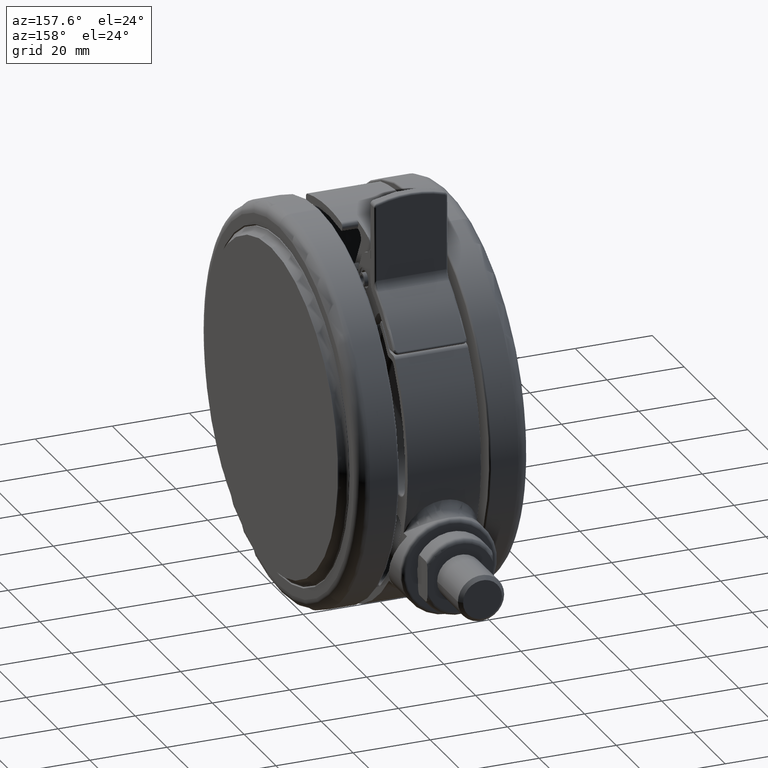
[diagram: clean part render]
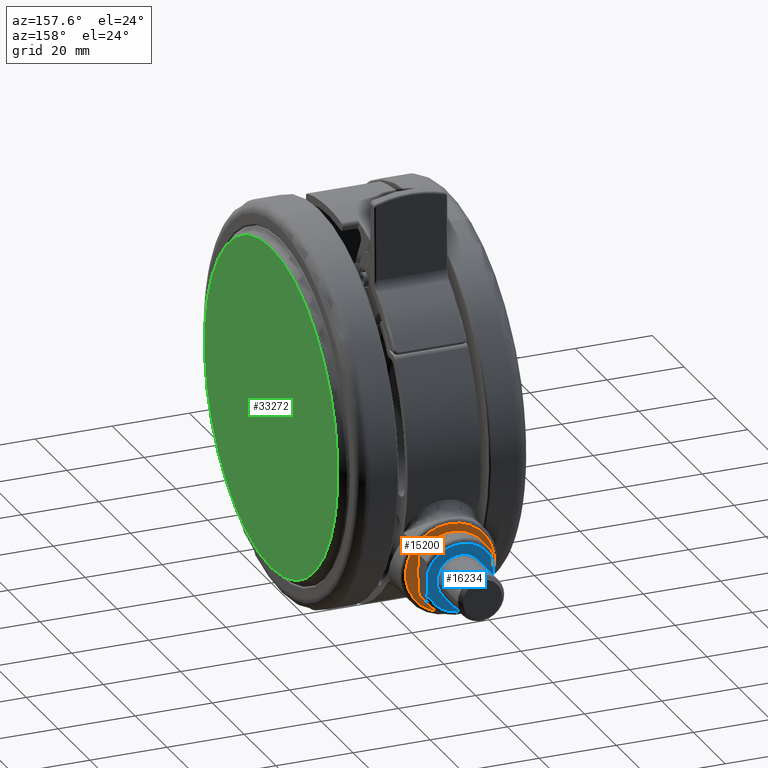
[diagram: same view with three faces highlighted in distinct colors, each labeled with its STEP entity id]
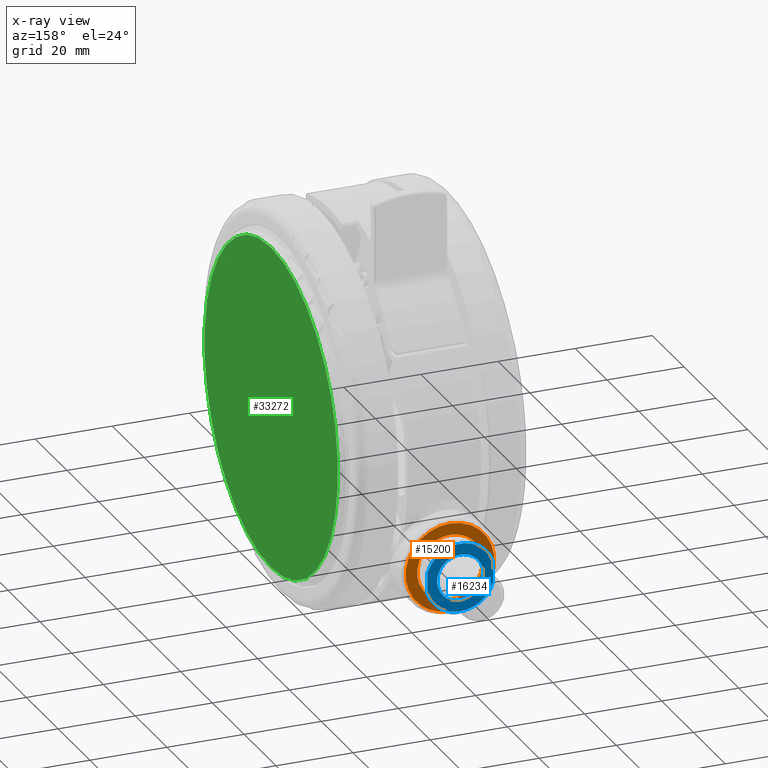
[diagram: x-ray of the same camera — body ghosted, the three highlighted faces saturated]
A machine part, auxiliary view with three faces highlighted in distinct colors.
The next image is the same camera in x-ray (body ghosted, the three faces saturated) — at least one of them is partly hidden behind the body in this view.
Their STEP definitions:

[orange] entity #15200 — the highlighted planar face has unit normal (0, -1, -0).
#811 = DIRECTION ( 'NONE',  ( -1.000000000000000000, 0.0000000000000000000, 0.0000000000000000000 ) ) ;
#867 = VERTEX_POINT ( 'NONE', #14047 ) ;
#923 = DIRECTION ( 'NONE',  ( -2.164600363292672200E-016, 1.000000000000000000, -6.688773330916236600E-017 ) ) ;
#2618 = ORIENTED_EDGE ( 'NONE', *, *, #38392, .T. ) ;
#3336 = CIRCLE ( 'NONE', #41781, 11.49999999999999600 ) ;
#3622 = EDGE_CURVE ( 'NONE', #29814, #12981, #44762, .T. ) ;
#4112 = ORIENTED_EDGE ( 'NONE', *, *, #3622, .T. ) ;
#4577 = CARTESIAN_POINT ( 'NONE',  ( -23.99999999999999300, -53.50000000000000700, -24.29999999999994700 ) ) ;
#5320 = FACE_OUTER_BOUND ( 'NONE', #12738, .T. ) ;
#10030 = DIRECTION ( 'NONE',  ( 2.164600363292672200E-016, -1.000000000000000000, 6.688773330916236600E-017 ) ) ;
#12565 = CARTESIAN_POINT ( 'NONE',  ( -23.99999999999999300, -53.50000000000000700, -24.29999999999994700 ) ) ;
#12738 = EDGE_LOOP ( 'NONE', ( #4112, #2618 ) ) ;
#12838 = AXIS2_PLACEMENT_3D ( 'NONE', #12565, #38953, #16358 ) ;
#12981 = VERTEX_POINT ( 'NONE', #22085 ) ;
#13940 = DIRECTION ( 'NONE',  ( 2.164600363292672200E-016, -1.000000000000000000, 6.688773330916236600E-017 ) ) ;
#14047 = CARTESIAN_POINT ( 'NONE',  ( -32.49999999999999300, -53.50000000000000700, -24.29999999999994700 ) ) ;
#15200 = ADVANCED_FACE ( 'NONE', ( #5320, #16537 ), #42321, .F. ) ;
#15415 = EDGE_CURVE ( 'NONE', #19220, #867, #25951, .T. ) ;
#16358 = DIRECTION ( 'NONE',  ( -1.000000000000000000, 0.0000000000000000000, 0.0000000000000000000 ) ) ;
#16537 = FACE_BOUND ( 'NONE', #21049, .T. ) ;
#19220 = VERTEX_POINT ( 'NONE', #38672 ) ;
#21049 = EDGE_LOOP ( 'NONE', ( #46625, #22896 ) ) ;
#21471 = AXIS2_PLACEMENT_3D ( 'NONE', #32594, #10030, #36423 ) ;
#22085 = CARTESIAN_POINT ( 'NONE',  ( -12.49999999999999300, -53.50000000000000700, -24.29999999999994700 ) ) ;
#22896 = ORIENTED_EDGE ( 'NONE', *, *, #15415, .F. ) ;
#23420 = DIRECTION ( 'NONE',  ( 2.164600363292672200E-016, -1.000000000000000000, 6.688773330916236600E-017 ) ) ;
#25951 = CIRCLE ( 'NONE', #41369, 8.500000000000000000 ) ;
#27323 = DIRECTION ( 'NONE',  ( -1.000000000000000000, -2.164600363292672200E-016, 2.126349141558172500E-017 ) ) ;
#29814 = VERTEX_POINT ( 'NONE', #40182 ) ;
#32594 = CARTESIAN_POINT ( 'NONE',  ( -23.99999999999999300, -53.50000000000000700, -24.29999999999994700 ) ) ;
#36423 = DIRECTION ( 'NONE',  ( -1.000000000000000000, 0.0000000000000000000, 0.0000000000000000000 ) ) ;
#36538 = CARTESIAN_POINT ( 'NONE',  ( -23.99999999999999300, -53.50000000000000700, -24.29999999999994700 ) ) ;
#38392 = EDGE_CURVE ( 'NONE', #12981, #29814, #3336, .T. ) ;
#38634 = CIRCLE ( 'NONE', #21471, 8.500000000000000000 ) ;
#38672 = CARTESIAN_POINT ( 'NONE',  ( -15.49999999999999300, -53.50000000000000700, -24.29999999999994700 ) ) ;
#38953 = DIRECTION ( 'NONE',  ( 2.164600363292672200E-016, -1.000000000000000000, 6.688773330916236600E-017 ) ) ;
#40182 = CARTESIAN_POINT ( 'NONE',  ( -35.49999999999999300, -53.50000000000000700, -24.29999999999994700 ) ) ;
#40331 = DIRECTION ( 'NONE',  ( -1.000000000000000000, 0.0000000000000000000, 0.0000000000000000000 ) ) ;
#41369 = AXIS2_PLACEMENT_3D ( 'NONE', #36538, #13940, #40331 ) ;
#41781 = AXIS2_PLACEMENT_3D ( 'NONE', #45981, #23420, #811 ) ;
#42321 = PLANE ( 'NONE',  #44843 ) ;
#44762 = CIRCLE ( 'NONE', #12838, 11.49999999999999600 ) ;
#44783 = EDGE_CURVE ( 'NONE', #867, #19220, #38634, .T. ) ;
#44843 = AXIS2_PLACEMENT_3D ( 'NONE', #4577, #923, #27323 ) ;
#45981 = CARTESIAN_POINT ( 'NONE',  ( -23.99999999999999300, -53.50000000000000700, -24.29999999999994700 ) ) ;
#46625 = ORIENTED_EDGE ( 'NONE', *, *, #44783, .F. ) ;

[blue] entity #16234 — the highlighted planar face has unit normal (0, 1, 0).
#503 = AXIS2_PLACEMENT_3D ( 'NONE', #43180, #20616, #46967 ) ;
#2951 = CARTESIAN_POINT ( 'NONE',  ( -18.73217312357362000, -59.99999999999999300, -32.79999999999994700 ) ) ;
#3575 = EDGE_CURVE ( 'NONE', #29462, #41362, #20580, .T. ) ;
#3820 = CARTESIAN_POINT ( 'NONE',  ( -23.99999999999999300, -59.99999999999999300, -24.29999999999994700 ) ) ;
#4747 = DIRECTION ( 'NONE',  ( 2.360897160001558300E-016, -1.000000000000000000, 6.688773330916236600E-017 ) ) ;
#6159 = ORIENTED_EDGE ( 'NONE', *, *, #12916, .T. ) ;
#11413 = DIRECTION ( 'NONE',  ( 2.360897160001558300E-016, -1.000000000000000000, 1.779100357716780400E-016 ) ) ;
#11712 = ORIENTED_EDGE ( 'NONE', *, *, #34545, .F. ) ;
#12097 = CARTESIAN_POINT ( 'NONE',  ( -18.73217312357362000, -59.99999999999999300, -15.79999999999994600 ) ) ;
#12916 = EDGE_CURVE ( 'NONE', #36354, #32851, #44907, .T. ) ;
#13149 = EDGE_CURVE ( 'NONE', #32851, #29462, #27770, .T. ) ;
#13864 = DIRECTION ( 'NONE',  ( 2.360897160001558300E-016, -1.000000000000000000, 6.688773330916236600E-017 ) ) ;
#14873 = AXIS2_PLACEMENT_3D ( 'NONE', #3820, #11413, #37774 ) ;
#15871 = DIRECTION ( 'NONE',  ( -1.000000000000000000, -2.360897160001558300E-016, -1.012011884991536800E-016 ) ) ;
#16234 = ADVANCED_FACE ( 'NONE', ( #32940, #41809 ), #33952, .T. ) ;
#18034 = ORIENTED_EDGE ( 'NONE', *, *, #13149, .T. ) ;
#19952 = EDGE_LOOP ( 'NONE', ( #11712, #31889 ) ) ;
#20580 = LINE ( 'NONE', #12097, #37109 ) ;
#20616 = DIRECTION ( 'NONE',  ( 2.360897160001558300E-016, -1.000000000000000000, 6.688773330916236600E-017 ) ) ;
#20708 = DIRECTION ( 'NONE',  ( 2.360897160001558300E-016, -1.000000000000000000, 6.688773330916236600E-017 ) ) ;
#20767 = EDGE_CURVE ( 'NONE', #41362, #36354, #22580, .T. ) ;
#22580 = CIRCLE ( 'NONE', #33344, 8.899999999999998600 ) ;
#26708 = CARTESIAN_POINT ( 'NONE',  ( -21.36181880834541100, -59.99999999999999300, -15.79999999999994600 ) ) ;
#27073 = AXIS2_PLACEMENT_3D ( 'NONE', #27324, #4747, #31100 ) ;
#27324 = CARTESIAN_POINT ( 'NONE',  ( -23.99999999999999300, -59.99999999999999300, -24.29999999999994700 ) ) ;
#27770 = CIRCLE ( 'NONE', #27073, 8.899999999999998600 ) ;
#27892 = ORIENTED_EDGE ( 'NONE', *, *, #20767, .T. ) ;
#29462 = VERTEX_POINT ( 'NONE', #26708 ) ;
#31100 = DIRECTION ( 'NONE',  ( 0.0000000000000000000, 0.0000000000000000000, -1.000000000000000000 ) ) ;
#31889 = ORIENTED_EDGE ( 'NONE', *, *, #32448, .F. ) ;
#32448 = EDGE_CURVE ( 'NONE', #44080, #44647, #38039, .T. ) ;
#32851 = VERTEX_POINT ( 'NONE', #45839 ) ;
#32940 = FACE_BOUND ( 'NONE', #19952, .T. ) ;
#33110 = DIRECTION ( 'NONE',  ( 1.000000000000000000, 2.360897160001558300E-016, 1.012011884991536800E-016 ) ) ;
#33344 = AXIS2_PLACEMENT_3D ( 'NONE', #43284, #20708, #47061 ) ;
#33952 = PLANE ( 'NONE',  #14873 ) ;
#34545 = EDGE_CURVE ( 'NONE', #44647, #44080, #37914, .T. ) ;
#34864 = VECTOR ( 'NONE', #33110, 1000.000000000000000 ) ;
#36354 = VERTEX_POINT ( 'NONE', #46841 ) ;
#36463 = CARTESIAN_POINT ( 'NONE',  ( -23.99999999999999300, -59.99999999999999300, -24.29999999999994700 ) ) ;
#37109 = VECTOR ( 'NONE', #15871, 1000.000000000000000 ) ;
#37774 = DIRECTION ( 'NONE',  ( 1.012011884991536800E-016, -1.779100357716780200E-016, -1.000000000000000000 ) ) ;
#37914 = CIRCLE ( 'NONE', #503, 5.999999999999998200 ) ;
#38039 = CIRCLE ( 'NONE', #39485, 5.999999999999998200 ) ;
#38139 = CARTESIAN_POINT ( 'NONE',  ( -23.99999999999999300, -59.99999999999999300, -30.29999999999994400 ) ) ;
#39485 = AXIS2_PLACEMENT_3D ( 'NONE', #36463, #13864, #40241 ) ;
#40241 = DIRECTION ( 'NONE',  ( 0.0000000000000000000, 0.0000000000000000000, -1.000000000000000000 ) ) ;
#40967 = EDGE_LOOP ( 'NONE', ( #6159, #18034, #43174, #27892 ) ) ;
#41362 = VERTEX_POINT ( 'NONE', #44353 ) ;
#41809 = FACE_OUTER_BOUND ( 'NONE', #40967, .T. ) ;
#43174 = ORIENTED_EDGE ( 'NONE', *, *, #3575, .T. ) ;
#43180 = CARTESIAN_POINT ( 'NONE',  ( -23.99999999999999300, -59.99999999999999300, -24.29999999999994700 ) ) ;
#43284 = CARTESIAN_POINT ( 'NONE',  ( -23.99999999999999300, -59.99999999999999300, -24.29999999999994700 ) ) ;
#44080 = VERTEX_POINT ( 'NONE', #38139 ) ;
#44353 = CARTESIAN_POINT ( 'NONE',  ( -26.63818119165457400, -59.99999999999999300, -15.79999999999994600 ) ) ;
#44647 = VERTEX_POINT ( 'NONE', #46604 ) ;
#44907 = LINE ( 'NONE', #2951, #34864 ) ;
#45839 = CARTESIAN_POINT ( 'NONE',  ( -21.36181880834541500, -59.99999999999999300, -32.79999999999994700 ) ) ;
#46604 = CARTESIAN_POINT ( 'NONE',  ( -23.99999999999999300, -59.99999999999999300, -18.29999999999994700 ) ) ;
#46841 = CARTESIAN_POINT ( 'NONE',  ( -26.63818119165456700, -60.00000000000000000, -32.79999999999994700 ) ) ;
#46967 = DIRECTION ( 'NONE',  ( 0.0000000000000000000, 0.0000000000000000000, -1.000000000000000000 ) ) ;
#47061 = DIRECTION ( 'NONE',  ( 0.0000000000000000000, 0.0000000000000000000, -1.000000000000000000 ) ) ;

[green] entity #33272 — the highlighted planar face has unit normal (-1, -0, 0).
#548 = CARTESIAN_POINT ( 'NONE',  ( 0.0000000000000000000, 0.0000000000000000000, 0.0000000000000000000 ) ) ;
#2907 = VERTEX_POINT ( 'NONE', #22736 ) ;
#3292 = CIRCLE ( 'NONE', #37388, 42.00000000000000000 ) ;
#4366 = DIRECTION ( 'NONE',  ( 1.000000000000000000, 0.0000000000000000000, 0.0000000000000000000 ) ) ;
#6651 = AXIS2_PLACEMENT_3D ( 'NONE', #548, #26944, #4366 ) ;
#10891 = PLANE ( 'NONE',  #28150 ) ;
#12178 = DIRECTION ( 'NONE',  ( 0.0000000000000000000, 0.0000000000000000000, 1.000000000000000000 ) ) ;
#14659 = DIRECTION ( 'NONE',  ( -1.000000000000000000, 0.0000000000000000000, 0.0000000000000000000 ) ) ;
#15650 = EDGE_CURVE ( 'NONE', #2907, #39138, #47760, .T. ) ;
#17525 = ORIENTED_EDGE ( 'NONE', *, *, #15650, .T. ) ;
#20482 = EDGE_LOOP ( 'NONE', ( #17525, #38793 ) ) ;
#22736 = CARTESIAN_POINT ( 'NONE',  ( 42.00000000000000000, 0.0000000000000000000, 0.0000000000000000000 ) ) ;
#26153 = FACE_OUTER_BOUND ( 'NONE', #20482, .T. ) ;
#26944 = DIRECTION ( 'NONE',  ( 0.0000000000000000000, 0.0000000000000000000, 1.000000000000000000 ) ) ;
#28150 = AXIS2_PLACEMENT_3D ( 'NONE', #48460, #37260, #14659 ) ;
#33272 = ADVANCED_FACE ( 'NONE', ( #26153 ), #10891, .F. ) ;
#34741 = CARTESIAN_POINT ( 'NONE',  ( 0.0000000000000000000, 0.0000000000000000000, 0.0000000000000000000 ) ) ;
#36221 = CARTESIAN_POINT ( 'NONE',  ( -42.00000000000000000, 5.143516556418883300E-015, 0.0000000000000000000 ) ) ;
#37260 = DIRECTION ( 'NONE',  ( 0.0000000000000000000, 0.0000000000000000000, -1.000000000000000000 ) ) ;
#37388 = AXIS2_PLACEMENT_3D ( 'NONE', #34741, #12178, #38559 ) ;
#38559 = DIRECTION ( 'NONE',  ( 1.000000000000000000, 0.0000000000000000000, 0.0000000000000000000 ) ) ;
#38793 = ORIENTED_EDGE ( 'NONE', *, *, #38914, .T. ) ;
#38914 = EDGE_CURVE ( 'NONE', #39138, #2907, #3292, .T. ) ;
#39138 = VERTEX_POINT ( 'NONE', #36221 ) ;
#47760 = CIRCLE ( 'NONE', #6651, 42.00000000000000000 ) ;
#48460 = CARTESIAN_POINT ( 'NONE',  ( 0.0000000000000000000, 0.0000000000000000000, 0.0000000000000000000 ) ) ;